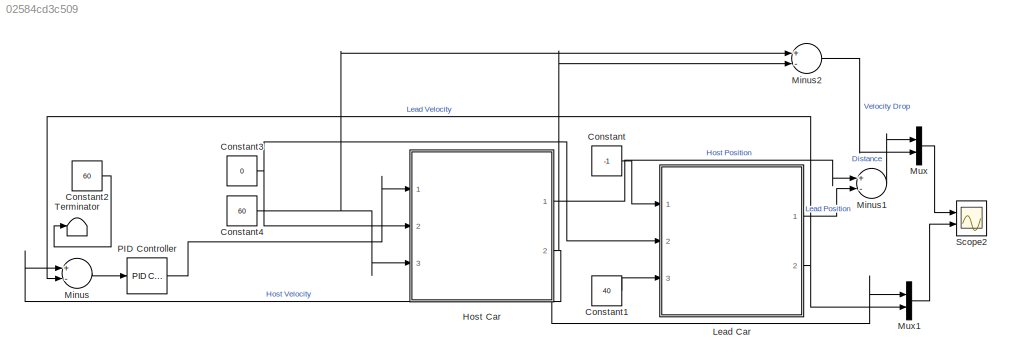
MODEL slx_02584cd3c509
KIND model
CONFIG AbsTol = auto
CONFIG EnableMultiTasking = off
CONFIG FixedStep = auto
CONFIG MaxStep = auto
CONFIG MinStep = auto
CONFIG RelTol = 1e-3
CONFIG SampleTimeConstraint = Unconstrained
CONFIG Solver = VariableStepAuto
CONFIG SolverName = VariableStepAuto
CONFIG StartTime = 0.0
CONFIG StopTime = 50
BLOCK [Constant] Constant
  Value = -1
BLOCK [Constant] Constant1
  Value = 40
BLOCK [Constant] Constant2
  Value = 60
BLOCK [Constant] Constant3
  Value = 0
BLOCK [Constant] Constant4
  Value = 60
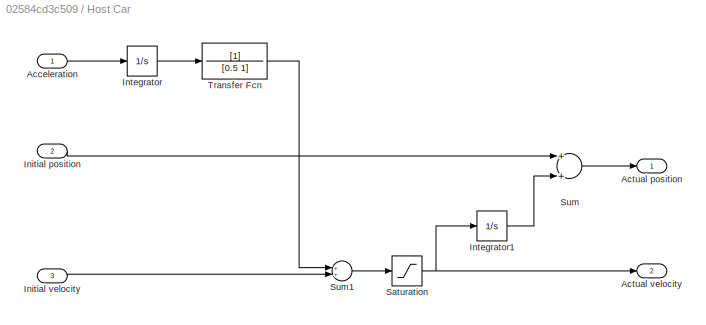
BLOCK [SubSystem] Host Car
  Ports = [3, 2]
  RequestExecContextInheritance = off
BLOCK [Inport] Host Car/Acceleration
  IconDisplay = Port number
BLOCK [Outport] Host Car/Actual position
  IconDisplay = Port number
BLOCK [Outport] Host Car/Actual velocity
  IconDisplay = Port number
  Port = 2
BLOCK [Inport] Host Car/Initial position
  IconDisplay = Port number
  Port = 2
BLOCK [Inport] Host Car/Initial velocity
  IconDisplay = Port number
  Port = 3
BLOCK [Integrator] Host Car/Integrator
  Ports = [1, 1]
BLOCK [Integrator] Host Car/Integrator1
  Ports = [1, 1]
BLOCK [Saturate] Host Car/Saturation
  InputPortMap = u0
  LowerLimit = 0
  Ports = [1, 1]
  UpperLimit = 60
BLOCK [Sum] Host Car/Sum
  InputSameDT = off
  OutDataTypeStr = Inherit: Inherit via internal rule
  Ports = [2, 1]
  SaturateOnIntegerOverflow = off
BLOCK [Sum] Host Car/Sum1
  InputSameDT = off
  OutDataTypeStr = Inherit: Inherit via internal rule
  Ports = [2, 1]
  SaturateOnIntegerOverflow = off
BLOCK [TransferFcn] Host Car/Transfer Fcn
  Denominator = [0.5 1]
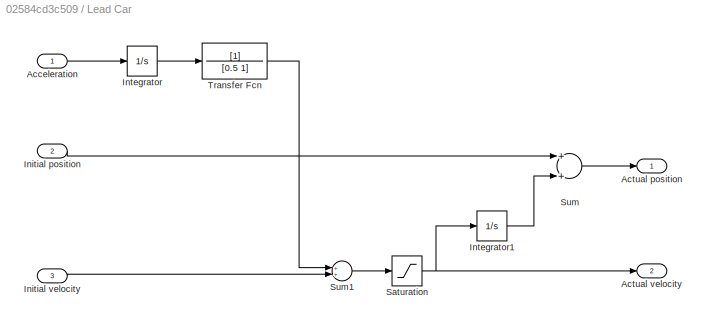
BLOCK [SubSystem] Lead Car
  Ports = [3, 2]
  RequestExecContextInheritance = off
BLOCK [Inport] Lead Car/Acceleration
  IconDisplay = Port number
BLOCK [Outport] Lead Car/Actual position
  IconDisplay = Port number
BLOCK [Outport] Lead Car/Actual velocity
  IconDisplay = Port number
  Port = 2
BLOCK [Inport] Lead Car/Initial position
  IconDisplay = Port number
  Port = 2
BLOCK [Inport] Lead Car/Initial velocity
  IconDisplay = Port number
  Port = 3
BLOCK [Integrator] Lead Car/Integrator
  Ports = [1, 1]
BLOCK [Integrator] Lead Car/Integrator1
  Ports = [1, 1]
BLOCK [Saturate] Lead Car/Saturation
  InputPortMap = u0
  LowerLimit = 0
  Ports = [1, 1]
  UpperLimit = 60
BLOCK [Sum] Lead Car/Sum
  InputSameDT = off
  OutDataTypeStr = Inherit: Inherit via internal rule
  Ports = [2, 1]
  SaturateOnIntegerOverflow = off
BLOCK [Sum] Lead Car/Sum1
  InputSameDT = off
  OutDataTypeStr = Inherit: Inherit via internal rule
  Ports = [2, 1]
  SaturateOnIntegerOverflow = off
BLOCK [TransferFcn] Lead Car/Transfer Fcn
  Denominator = [0.5 1]
BLOCK [Sum] Minus
  InputSameDT = off
  Inputs = +-
  OutDataTypeStr = Inherit: Inherit via internal rule
  Ports = [2, 1]
  SaturateOnIntegerOverflow = off
BLOCK [Sum] Minus1
  InputSameDT = off
  Inputs = +-
  OutDataTypeStr = Inherit: Inherit via internal rule
  Ports = [2, 1]
  SaturateOnIntegerOverflow = off
BLOCK [Sum] Minus2
  InputSameDT = off
  Inputs = +-
  OutDataTypeStr = Inherit: Inherit via internal rule
  Ports = [2, 1]
  SaturateOnIntegerOverflow = off
BLOCK [Mux] Mux
  DisplayOption = bar
  Inputs = 2
  Ports = [2, 1]
BLOCK [Mux] Mux1
  DisplayOption = bar
  Inputs = 2
  Ports = [2, 1]
BLOCK [Reference] PID Controller  REF=simulink/Continuous/PID Controller
  Ports = [1, 1]
  SourceBlock = simulink/Continuous/PID Controller
  SourceProductBaseCode = SL
  SourceProductName = Simulink
  SourceType = PID 1dof
BLOCK [Scope] Scope2
  Floating = off
  NumInputPorts = 2
  Ports = [2]
  ScopeSpecificationString = Simulink.scopes.TimeScopeBlockCfg('CurrentConfiguration', extmgr.ConfigurationSet(extmgr.Configuration('Core','General UI',true),extmgr.Configuration('Core','Source UI',true),extmgr.Configuration('Sources','WiredSimulink',true,'DataLoggingVariableName','ScopeData1'),extmgr.Configuration('Visuals','Time Domain',true,'SerializedDisplays',{struct('MinYLimReal','-10.70368','MaxYLimReal','96.33313','YL...<+2190ch>
BLOCK [Terminator] Terminator
LINE Constant1:1 -> Lead Car:3
LINE Constant2:1 -> Terminator:1
NET Constant3:1 -> Host Car:2, Lead Car:2
NET Constant4:1 -> Host Car:3, Minus2:1
LINE Constant:1 -> Lead Car:1
LINE Host Car/Acceleration:1 -> Host Car/Integrator:1
LINE Host Car/Initial position:1 -> Host Car/Sum:1
LINE Host Car/Initial velocity:1 -> Host Car/Sum1:2
LINE Host Car/Integrator1:1 -> Host Car/Sum:2
LINE Host Car/Integrator:1 -> Host Car/Transfer Fcn:1
NET Host Car/Saturation:1 -> Host Car/Actual velocity:1, Host Car/Integrator1:1
LINE Host Car/Sum1:1 -> Host Car/Saturation:1
LINE Host Car/Sum:1 -> Host Car/Actual position:1
LINE Host Car/Transfer Fcn:1 -> Host Car/Sum1:1
LINE Host Car:1 -> Minus1:1
NET Host Car:2 -> Minus2:2, Minus:1, Mux1:1
LINE Lead Car/Acceleration:1 -> Lead Car/Integrator:1
LINE Lead Car/Initial position:1 -> Lead Car/Sum:1
LINE Lead Car/Initial velocity:1 -> Lead Car/Sum1:2
LINE Lead Car/Integrator1:1 -> Lead Car/Sum:2
LINE Lead Car/Integrator:1 -> Lead Car/Transfer Fcn:1
NET Lead Car/Saturation:1 -> Lead Car/Actual velocity:1, Lead Car/Integrator1:1
LINE Lead Car/Sum1:1 -> Lead Car/Saturation:1
LINE Lead Car/Sum:1 -> Lead Car/Actual position:1
LINE Lead Car/Transfer Fcn:1 -> Lead Car/Sum1:1
LINE Lead Car:1 -> Minus1:2
NET Lead Car:2 -> Minus:2, Mux1:2
LINE Minus1:1 -> Mux:1
LINE Minus2:1 -> Mux:2
LINE Minus:1 -> PID Controller:1
LINE Mux1:1 -> Scope2:2
LINE Mux:1 -> Scope2:1
LINE PID Controller:1 -> Host Car:1
note: NET lines group one-source signal fan-out (src -> all destinations, sorted); 1:1 wires keep LINE
